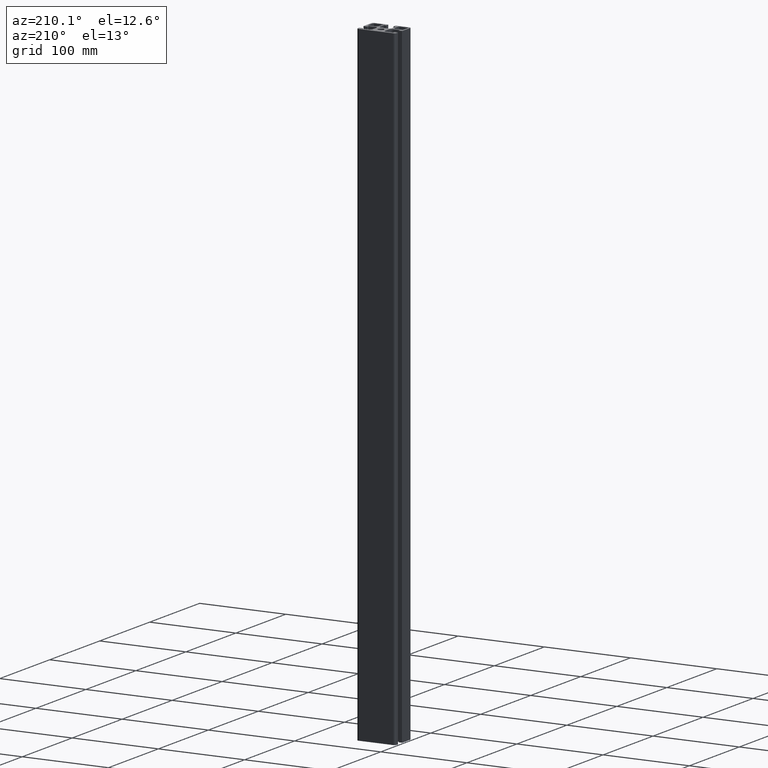
[diagram: clean part render]
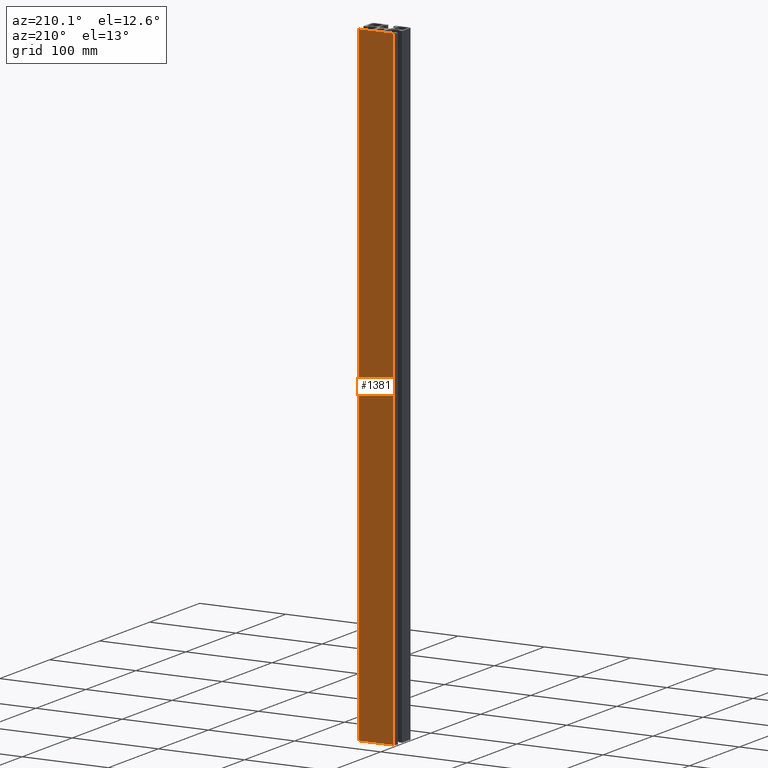
[diagram: same view with one face highlighted and labeled with its STEP entity id]
A machine part, auxiliary view. The second image highlights one B-rep face of the part: STEP entity #1381.
In plain terms, the highlighted planar face has unit normal (0, 1, 0).
Its self-contained STEP definition (entity closure, byte-faithful):
#174=FACE_OUTER_BOUND('',#246,.T.);
#246=EDGE_LOOP('',(#1200,#1201,#1202,#1203));
#385=LINE('',#2307,#528);
#392=LINE('',#2329,#535);
#393=LINE('',#2333,#536);
#394=LINE('',#2334,#537);
#528=VECTOR('',#1893,10.);
#535=VECTOR('',#1920,10.);
#536=VECTOR('',#1925,10.);
#537=VECTOR('',#1926,10.);
#664=VERTEX_POINT('',#2304);
#665=VERTEX_POINT('',#2306);
#670=VERTEX_POINT('',#2328);
#671=VERTEX_POINT('',#2332);
#856=EDGE_CURVE('',#665,#664,#385,.T.);
#868=EDGE_CURVE('',#670,#665,#392,.T.);
#870=EDGE_CURVE('',#671,#664,#393,.T.);
#871=EDGE_CURVE('',#670,#671,#394,.T.);
#1200=ORIENTED_EDGE('',*,*,#856,.T.);
#1201=ORIENTED_EDGE('',*,*,#870,.F.);
#1202=ORIENTED_EDGE('',*,*,#871,.F.);
#1203=ORIENTED_EDGE('',*,*,#868,.T.);
#1313=PLANE('',#1530);
#1381=ADVANCED_FACE('',(#174),#1313,.T.);
#1530=AXIS2_PLACEMENT_3D('',#2331,#1923,#1924);
#1893=DIRECTION('',(1.,0.,0.));
#1920=DIRECTION('',(0.,0.,1.));
#1923=DIRECTION('center_axis',(0.,1.,0.));
#1924=DIRECTION('ref_axis',(-1.,0.,0.));
#1925=DIRECTION('',(0.,0.,1.));
#1926=DIRECTION('',(1.,0.,0.));
#2304=CARTESIAN_POINT('',(20.,9.5,732.));
#2306=CARTESIAN_POINT('',(-20.,9.5,732.));
#2307=CARTESIAN_POINT('',(10.,9.5,732.));
#2328=CARTESIAN_POINT('',(-20.,9.5,0.));
#2329=CARTESIAN_POINT('',(-20.,9.5,0.));
#2331=CARTESIAN_POINT('Origin',(20.,9.5,0.));
#2332=CARTESIAN_POINT('',(20.,9.5,0.));
#2333=CARTESIAN_POINT('',(20.,9.5,0.));
#2334=CARTESIAN_POINT('',(10.,9.5,0.));